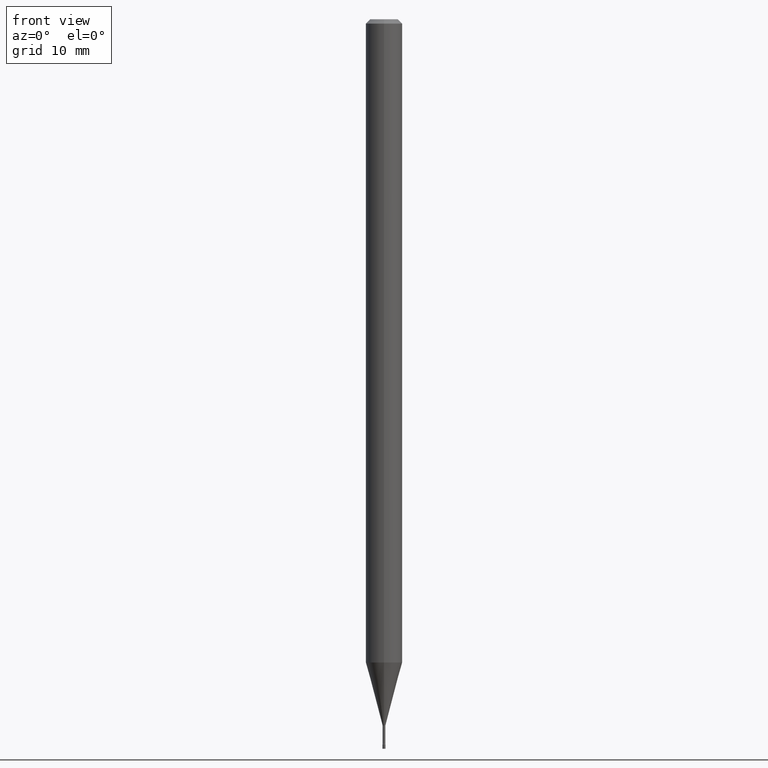
[diagram: clean part render]
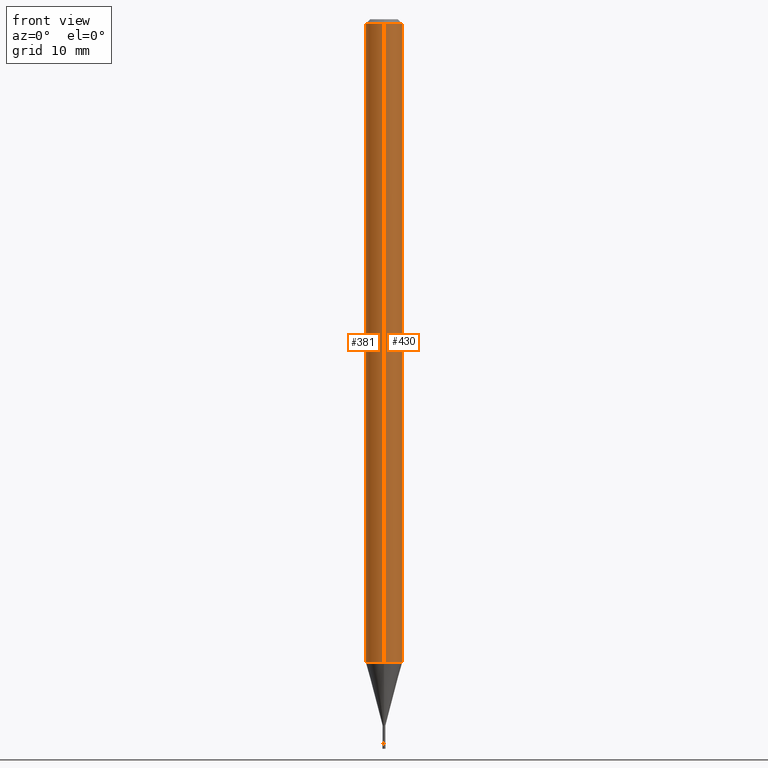
[diagram: same view with one multi-face feature highlighted, each face labeled with its STEP entity id]
A machine part, front view. The highlighted faces form ONE feature: a constant-radius fillet chain: 2 tangent blend faces with common blend radius 1.5875 mm. The faces share edges in the B-rep.
Their STEP definitions:
[1] entity #430 (Cylinder):
#15 = CARTESIAN_POINT ( 'NONE',  ( 0.000000000000000000, 0.000000000000000000, 0.000000000000000000 ) ) ;
#34 = CARTESIAN_POINT ( 'NONE',  ( 3.666497571693545913E-31, -5.239664578364117759E-17, -0.01500000000000003067 ) ) ;
#43 = DIRECTION ( 'NONE',  ( -2.444331714462359119E-29, 3.493109718909404263E-15, 1.000000000000000000 ) ) ;
#46 = CIRCLE ( 'NONE', #296, 0.06250000000000000000 ) ;
#48 = CARTESIAN_POINT ( 'NONE',  ( -4.364351673553377310E-16, -0.06250000000000770217, -2.204287463322519347 ) ) ;
#53 = VERTEX_POINT ( 'NONE', #212 ) ;
#61 = CARTESIAN_POINT ( 'NONE',  ( 5.388009754391018819E-29, -7.699817961402049709E-15, -2.204287463322519347 ) ) ;
#83 = DIRECTION ( 'NONE',  ( -2.444331714462359119E-29, 3.493109718909404657E-15, 1.000000000000000000 ) ) ;
#91 = DIRECTION ( 'NONE',  ( -2.444331714462359119E-29, 3.493109718909404263E-15, 1.000000000000000000 ) ) ;
#93 = DIRECTION ( 'NONE',  ( -2.444331714462359119E-29, 3.493109718909404657E-15, 1.000000000000000000 ) ) ;
#185 = DIRECTION ( 'NONE',  ( -6.982962677686265922E-15, -1.000000000000000000, 3.483106191921935554E-15 ) ) ;
#187 = ORIENTED_EDGE ( 'NONE', *, *, #226, .F. ) ;
#190 = CARTESIAN_POINT ( 'NONE',  ( -4.364351673553916201E-16, -0.06250000000000000000, 2.183193574318377911E-16 ) ) ;
#194 = EDGE_LOOP ( 'NONE', ( #467, #389, #187, #360 ) ) ;
#212 = CARTESIAN_POINT ( 'NONE',  ( -4.364351673553912750E-16, -0.06250000000000005551, -0.01499999999999981209 ) ) ;
#214 = AXIS2_PLACEMENT_3D ( 'NONE', #34, #350, #185 ) ;
#225 = VECTOR ( 'NONE', #43, 39.37007874015748143 ) ;
#226 = EDGE_CURVE ( 'NONE', #53, #345, #385, .T. ) ;
#240 = CARTESIAN_POINT ( 'NONE',  ( 4.440892098501169490E-16, 0.06249999999999995837, -0.01500000000000024751 ) ) ;
#241 = VECTOR ( 'NONE', #91, 39.37007874015748143 ) ;
#251 = FACE_OUTER_BOUND ( 'NONE', #194, .T. ) ;
#283 = CYLINDRICAL_SURFACE ( 'NONE', #435, 0.06250000000000000000 ) ;
#296 = AXIS2_PLACEMENT_3D ( 'NONE', #61, #93, #417 ) ;
#307 = EDGE_CURVE ( 'NONE', #387, #53, #470, .T. ) ;
#345 = VERTEX_POINT ( 'NONE', #240 ) ;
#350 = DIRECTION ( 'NONE',  ( -2.444331714462359119E-29, 3.493109718909404657E-15, 1.000000000000000000 ) ) ;
#360 = ORIENTED_EDGE ( 'NONE', *, *, #307, .F. ) ;
#385 = CIRCLE ( 'NONE', #214, 0.06250000000000000000 ) ;
#387 = VERTEX_POINT ( 'NONE', #48 ) ;
#389 = ORIENTED_EDGE ( 'NONE', *, *, #409, .T. ) ;
#402 = CARTESIAN_POINT ( 'NONE',  ( 4.440892098501162587E-16, 0.06249999999999228395, -2.204287463322519791 ) ) ;
#404 = DIRECTION ( 'NONE',  ( -6.982962677686265922E-15, -1.000000000000000000, 3.493109718909404657E-15 ) ) ;
#409 = EDGE_CURVE ( 'NONE', #478, #345, #487, .T. ) ;
#417 = DIRECTION ( 'NONE',  ( -6.982962677686265922E-15, -1.000000000000000000, 4.370956789862821150E-15 ) ) ;
#430 = ADVANCED_FACE ( 'NONE', ( #251 ), #283, .T. ) ;
#435 = AXIS2_PLACEMENT_3D ( 'NONE', #15, #83, #404 ) ;
#446 = EDGE_CURVE ( 'NONE', #387, #478, #46, .T. ) ;
#467 = ORIENTED_EDGE ( 'NONE', *, *, #446, .T. ) ;
#470 = LINE ( 'NONE', #190, #225 ) ;
#478 = VERTEX_POINT ( 'NONE', #402 ) ;
#487 = LINE ( 'NONE', #493, #241 ) ;
#493 = CARTESIAN_POINT ( 'NONE',  ( 4.440892098500625669E-16, 0.06250000000000000000, -2.183193574318377911E-16 ) ) ;
[2] entity #381 (Cylinder):
#14 = AXIS2_PLACEMENT_3D ( 'NONE', #168, #450, #370 ) ;
#16 = CARTESIAN_POINT ( 'NONE',  ( 5.388009754391018819E-29, -7.699817961402049709E-15, -2.204287463322519347 ) ) ;
#30 = CIRCLE ( 'NONE', #271, 0.06250000000000000000 ) ;
#43 = DIRECTION ( 'NONE',  ( -2.444331714462359119E-29, 3.493109718909404263E-15, 1.000000000000000000 ) ) ;
#48 = CARTESIAN_POINT ( 'NONE',  ( -4.364351673553377310E-16, -0.06250000000000770217, -2.204287463322519347 ) ) ;
#53 = VERTEX_POINT ( 'NONE', #212 ) ;
#54 = EDGE_CURVE ( 'NONE', #478, #387, #471, .T. ) ;
#59 = ORIENTED_EDGE ( 'NONE', *, *, #502, .F. ) ;
#91 = DIRECTION ( 'NONE',  ( -2.444331714462359119E-29, 3.493109718909404263E-15, 1.000000000000000000 ) ) ;
#130 = DIRECTION ( 'NONE',  ( -2.444331714462359119E-29, 3.493109718909404657E-15, 1.000000000000000000 ) ) ;
#154 = DIRECTION ( 'NONE',  ( -2.444331714462359119E-29, 3.493109718909404657E-15, 1.000000000000000000 ) ) ;
#168 = CARTESIAN_POINT ( 'NONE',  ( 0.000000000000000000, 0.000000000000000000, 0.000000000000000000 ) ) ;
#174 = ORIENTED_EDGE ( 'NONE', *, *, #307, .T. ) ;
#190 = CARTESIAN_POINT ( 'NONE',  ( -4.364351673553916201E-16, -0.06250000000000000000, 2.183193574318377911E-16 ) ) ;
#207 = CYLINDRICAL_SURFACE ( 'NONE', #14, 0.06250000000000000000 ) ;
#212 = CARTESIAN_POINT ( 'NONE',  ( -4.364351673553912750E-16, -0.06250000000000005551, -0.01499999999999981209 ) ) ;
#225 = VECTOR ( 'NONE', #43, 39.37007874015748143 ) ;
#240 = CARTESIAN_POINT ( 'NONE',  ( 4.440892098501169490E-16, 0.06249999999999995837, -0.01500000000000024751 ) ) ;
#241 = VECTOR ( 'NONE', #91, 39.37007874015748143 ) ;
#271 = AXIS2_PLACEMENT_3D ( 'NONE', #516, #154, #306 ) ;
#272 = ORIENTED_EDGE ( 'NONE', *, *, #54, .T. ) ;
#293 = DIRECTION ( 'NONE',  ( -6.982962677686265922E-15, -1.000000000000000000, 4.370956789862821150E-15 ) ) ;
#303 = AXIS2_PLACEMENT_3D ( 'NONE', #16, #130, #293 ) ;
#306 = DIRECTION ( 'NONE',  ( -6.982962677686265922E-15, -1.000000000000000000, 3.483106191921935554E-15 ) ) ;
#307 = EDGE_CURVE ( 'NONE', #387, #53, #470, .T. ) ;
#345 = VERTEX_POINT ( 'NONE', #240 ) ;
#370 = DIRECTION ( 'NONE',  ( -6.982962677686265922E-15, -1.000000000000000000, 3.493109718909404657E-15 ) ) ;
#381 = ADVANCED_FACE ( 'NONE', ( #447 ), #207, .T. ) ;
#382 = EDGE_LOOP ( 'NONE', ( #391, #272, #174, #59 ) ) ;
#387 = VERTEX_POINT ( 'NONE', #48 ) ;
#391 = ORIENTED_EDGE ( 'NONE', *, *, #409, .F. ) ;
#402 = CARTESIAN_POINT ( 'NONE',  ( 4.440892098501162587E-16, 0.06249999999999228395, -2.204287463322519791 ) ) ;
#409 = EDGE_CURVE ( 'NONE', #478, #345, #487, .T. ) ;
#447 = FACE_OUTER_BOUND ( 'NONE', #382, .T. ) ;
#450 = DIRECTION ( 'NONE',  ( -2.444331714462359119E-29, 3.493109718909404657E-15, 1.000000000000000000 ) ) ;
#470 = LINE ( 'NONE', #190, #225 ) ;
#471 = CIRCLE ( 'NONE', #303, 0.06250000000000000000 ) ;
#478 = VERTEX_POINT ( 'NONE', #402 ) ;
#487 = LINE ( 'NONE', #493, #241 ) ;
#493 = CARTESIAN_POINT ( 'NONE',  ( 4.440892098500625669E-16, 0.06250000000000000000, -2.183193574318377911E-16 ) ) ;
#502 = EDGE_CURVE ( 'NONE', #345, #53, #30, .T. ) ;
#516 = CARTESIAN_POINT ( 'NONE',  ( 3.666497571693545913E-31, -5.239664578364117759E-17, -0.01500000000000003067 ) ) ;